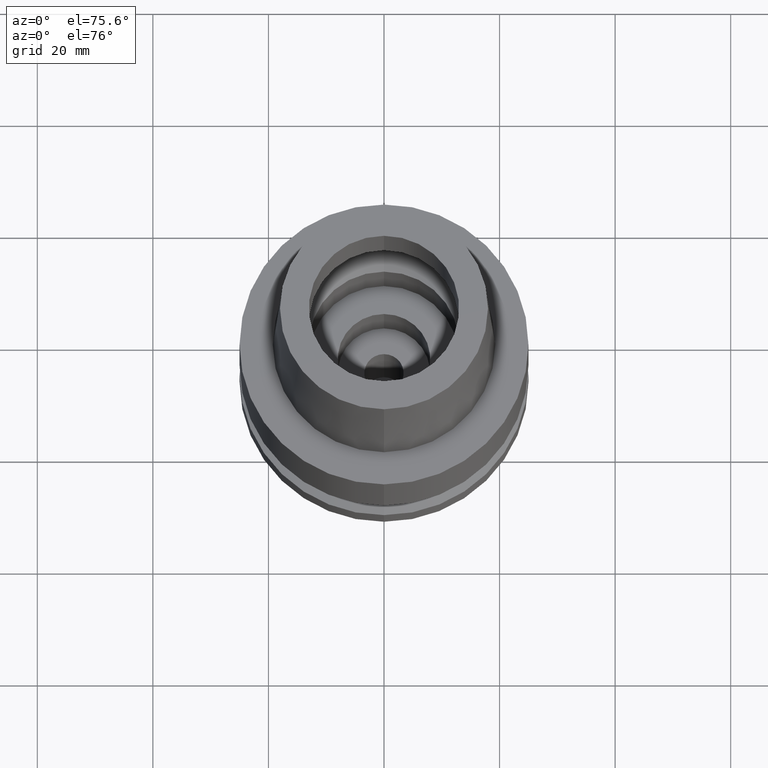
[diagram: clean part render]
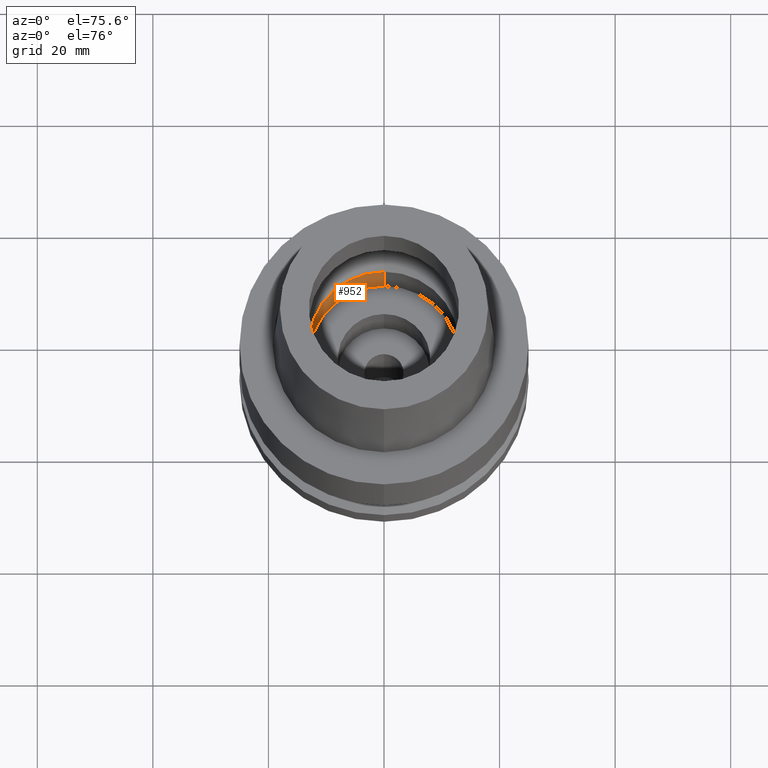
[diagram: same view with one face highlighted and labeled with its STEP entity id]
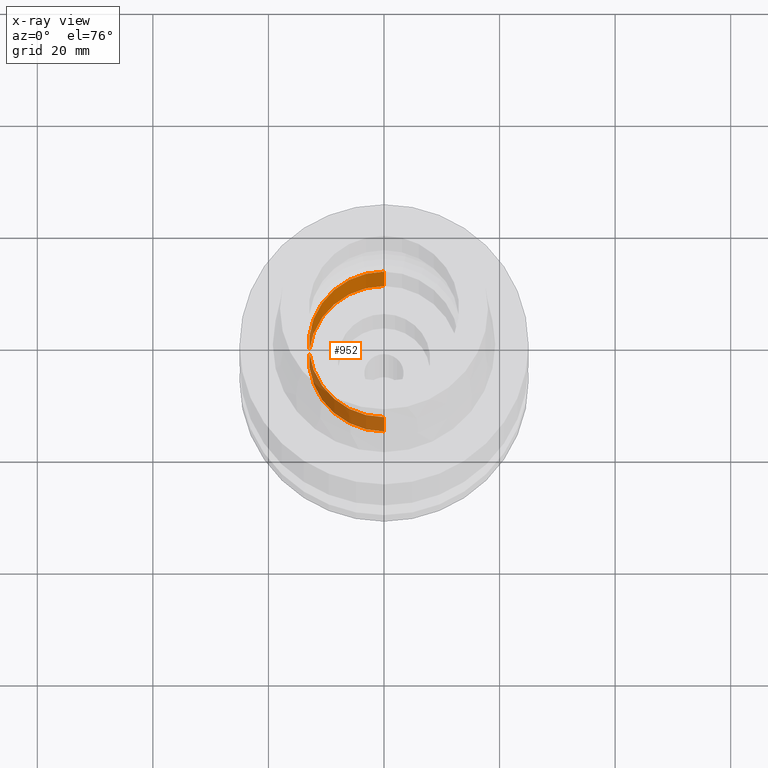
[diagram: x-ray of the same camera — body ghosted, the highlighted face saturated]
A machine part, auxiliary view. The second image highlights one B-rep face of the part: STEP entity #952.
The next image is the same camera in x-ray: the body ghosted, the highlighted face saturated — about 52% of this face is hidden behind the body in this view.
In plain terms, the highlighted cylindrical surface (partial cylindrical patch) has radius 13 mm, axis along (0, 0, -1).
Its self-contained STEP definition (entity closure, byte-faithful):
#18 = DIRECTION ( 'NONE',  ( 0.0000000000000000000, 0.0000000000000000000, -1.000000000000000000 ) ) ;
#69 = DIRECTION ( 'NONE',  ( 0.0000000000000000000, 0.0000000000000000000, 1.000000000000000000 ) ) ;
#78 = DIRECTION ( 'NONE',  ( 0.0000000000000000000, 0.0000000000000000000, 1.000000000000000000 ) ) ;
#109 = EDGE_CURVE ( 'NONE', #2179, #278, #458, .T. ) ;
#133 = VECTOR ( 'NONE', #69, 1000.000000000000000 ) ;
#164 = EDGE_LOOP ( 'NONE', ( #725, #1546, #735, #942 ) ) ;
#232 = AXIS2_PLACEMENT_3D ( 'NONE', #1065, #18, #2297 ) ;
#278 = VERTEX_POINT ( 'NONE', #2490 ) ;
#310 = AXIS2_PLACEMENT_3D ( 'NONE', #1149, #907, #1975 ) ;
#458 = CIRCLE ( 'NONE', #232, 13.00000000000000000 ) ;
#473 = VERTEX_POINT ( 'NONE', #1662 ) ;
#522 = CARTESIAN_POINT ( 'NONE',  ( 0.0000000000000000000, 13.00000000000000000, -9.950000000000001066 ) ) ;
#614 = CARTESIAN_POINT ( 'NONE',  ( 0.0000000000000000000, -13.00000000000000000, -4.973799150320999175E-14 ) ) ;
#725 = ORIENTED_EDGE ( 'NONE', *, *, #109, .F. ) ;
#735 = ORIENTED_EDGE ( 'NONE', *, *, #2560, .T. ) ;
#764 = VECTOR ( 'NONE', #78, 1000.000000000000000 ) ;
#905 = CARTESIAN_POINT ( 'NONE',  ( 0.0000000000000000000, 0.0000000000000000000, 30.06500000000000128 ) ) ;
#907 = DIRECTION ( 'NONE',  ( 0.0000000000000000000, 0.0000000000000000000, -1.000000000000000000 ) ) ;
#942 = ORIENTED_EDGE ( 'NONE', *, *, #2613, .T. ) ;
#945 = FACE_OUTER_BOUND ( 'NONE', #164, .T. ) ;
#952 = ADVANCED_FACE ( 'NONE', ( #945 ), #1313, .F. ) ;
#1065 = CARTESIAN_POINT ( 'NONE',  ( 0.0000000000000000000, 0.0000000000000000000, -4.973799150320999175E-14 ) ) ;
#1066 = CIRCLE ( 'NONE', #310, 13.00000000000000000 ) ;
#1149 = CARTESIAN_POINT ( 'NONE',  ( 0.0000000000000000000, 0.0000000000000000000, -9.950000000000001066 ) ) ;
#1258 = EDGE_CURVE ( 'NONE', #1347, #2179, #2311, .T. ) ;
#1313 = CYLINDRICAL_SURFACE ( 'NONE', #1962, 13.00000000000000000 ) ;
#1347 = VERTEX_POINT ( 'NONE', #2391 ) ;
#1546 = ORIENTED_EDGE ( 'NONE', *, *, #1258, .F. ) ;
#1662 = CARTESIAN_POINT ( 'NONE',  ( 0.0000000000000000000, 13.00000000000000000, -9.950000000000001066 ) ) ;
#1933 = DIRECTION ( 'NONE',  ( 0.0000000000000000000, -1.000000000000000000, 0.0000000000000000000 ) ) ;
#1948 = LINE ( 'NONE', #522, #764 ) ;
#1962 = AXIS2_PLACEMENT_3D ( 'NONE', #905, #2384, #1933 ) ;
#1975 = DIRECTION ( 'NONE',  ( 0.0000000000000000000, -1.000000000000000000, 0.0000000000000000000 ) ) ;
#2179 = VERTEX_POINT ( 'NONE', #614 ) ;
#2297 = DIRECTION ( 'NONE',  ( 0.0000000000000000000, -1.000000000000000000, 0.0000000000000000000 ) ) ;
#2311 = LINE ( 'NONE', #2351, #133 ) ;
#2351 = CARTESIAN_POINT ( 'NONE',  ( 0.0000000000000000000, -13.00000000000000000, -9.950000000000001066 ) ) ;
#2384 = DIRECTION ( 'NONE',  ( 0.0000000000000000000, 0.0000000000000000000, -1.000000000000000000 ) ) ;
#2391 = CARTESIAN_POINT ( 'NONE',  ( 0.0000000000000000000, -13.00000000000000000, -9.950000000000001066 ) ) ;
#2490 = CARTESIAN_POINT ( 'NONE',  ( 0.0000000000000000000, 13.00000000000000000, -4.973799150320999175E-14 ) ) ;
#2560 = EDGE_CURVE ( 'NONE', #1347, #473, #1066, .T. ) ;
#2613 = EDGE_CURVE ( 'NONE', #473, #278, #1948, .T. ) ;